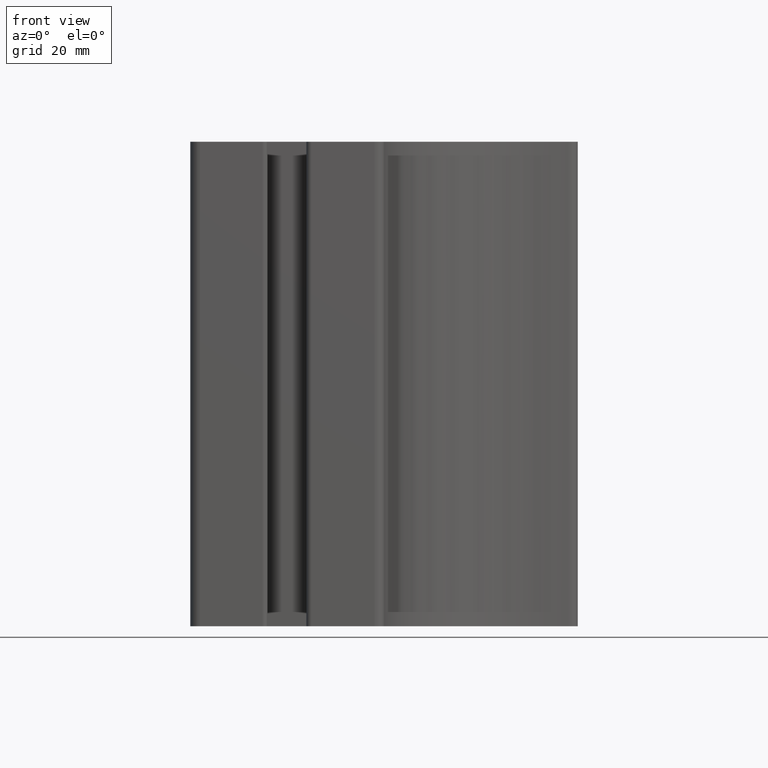
[diagram: clean part render]
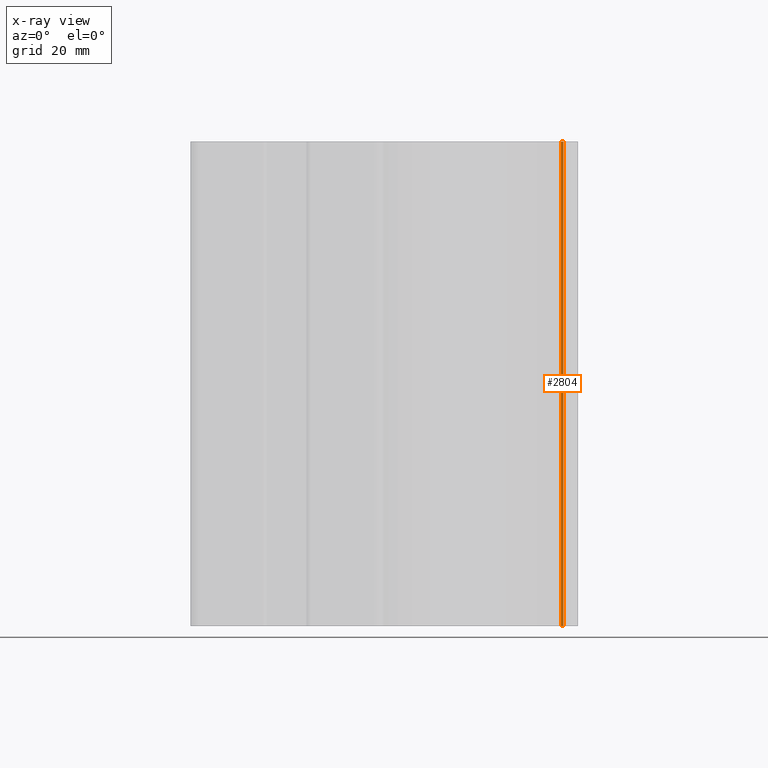
[diagram: x-ray — body ghosted, one internal face saturated and labeled with its STEP entity id]
A machine part, front view, then the same camera in x-ray: the body is ghosted and one INTERNAL B-rep face — a face not visible from any outside direction — is saturated and labeled: STEP entity #2804.
In plain terms, the highlighted planar face has unit normal (0, -1, 0).
Its self-contained STEP definition (entity closure, byte-faithful):
#399=FACE_OUTER_BOUND('',#543,.T.);
#543=EDGE_LOOP('',(#2214,#2215,#2216,#2217));
#773=LINE('',#4672,#1021);
#774=LINE('',#4675,#1022);
#775=LINE('',#4677,#1023);
#776=LINE('',#4678,#1024);
#1021=VECTOR('',#3821,100.);
#1022=VECTOR('',#3824,0.526488098983098);
#1023=VECTOR('',#3825,0.526488098983098);
#1024=VECTOR('',#3826,100.);
#1304=VERTEX_POINT('',#4668);
#1305=VERTEX_POINT('',#4670);
#1306=VERTEX_POINT('',#4674);
#1307=VERTEX_POINT('',#4676);
#1689=EDGE_CURVE('',#1304,#1305,#773,.T.);
#1690=EDGE_CURVE('',#1304,#1306,#774,.T.);
#1691=EDGE_CURVE('',#1307,#1305,#775,.T.);
#1692=EDGE_CURVE('',#1306,#1307,#776,.T.);
#2214=ORIENTED_EDGE('',*,*,#1690,.F.);
#2215=ORIENTED_EDGE('',*,*,#1689,.T.);
#2216=ORIENTED_EDGE('',*,*,#1691,.F.);
#2217=ORIENTED_EDGE('',*,*,#1692,.F.);
#2679=PLANE('',#3087);
#2804=ADVANCED_FACE('',(#399),#2679,.T.);
#3087=AXIS2_PLACEMENT_3D('',#4673,#3822,#3823);
#3821=DIRECTION('',(0.,0.,1.));
#3822=DIRECTION('center_axis',(0.,-1.,0.));
#3823=DIRECTION('ref_axis',(1.,0.,0.));
#3824=DIRECTION('',(-1.,0.,0.));
#3825=DIRECTION('',(1.,0.,0.));
#3826=DIRECTION('',(0.,0.,1.));
#4668=CARTESIAN_POINT('',(39.4765470394793,9.20645315500434,0.));
#4670=CARTESIAN_POINT('',(39.4765470394793,9.20645315500434,100.));
#4672=CARTESIAN_POINT('',(39.4765470394793,9.20645315500434,0.));
#4673=CARTESIAN_POINT('Origin',(38.9500589404962,9.20645315500434,0.));
#4674=CARTESIAN_POINT('',(38.9500589404962,9.20645315500434,0.));
#4675=CARTESIAN_POINT('',(39.4765470394793,9.20645315500434,0.));
#4676=CARTESIAN_POINT('',(38.9500589404962,9.20645315500434,100.));
#4677=CARTESIAN_POINT('',(39.4765470394793,9.20645315500434,100.));
#4678=CARTESIAN_POINT('',(38.9500589404962,9.20645315500434,0.));